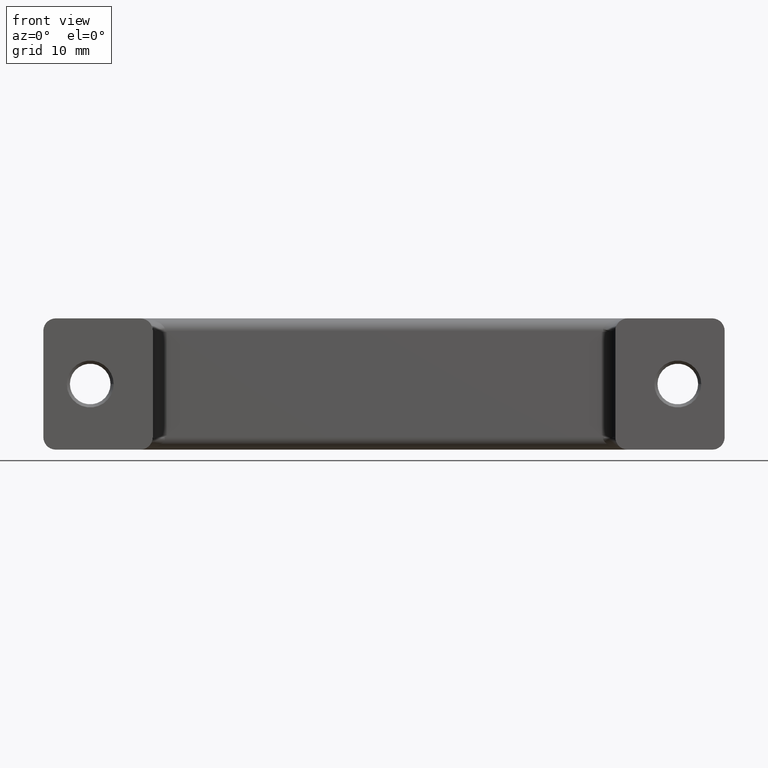
[diagram: clean part render]
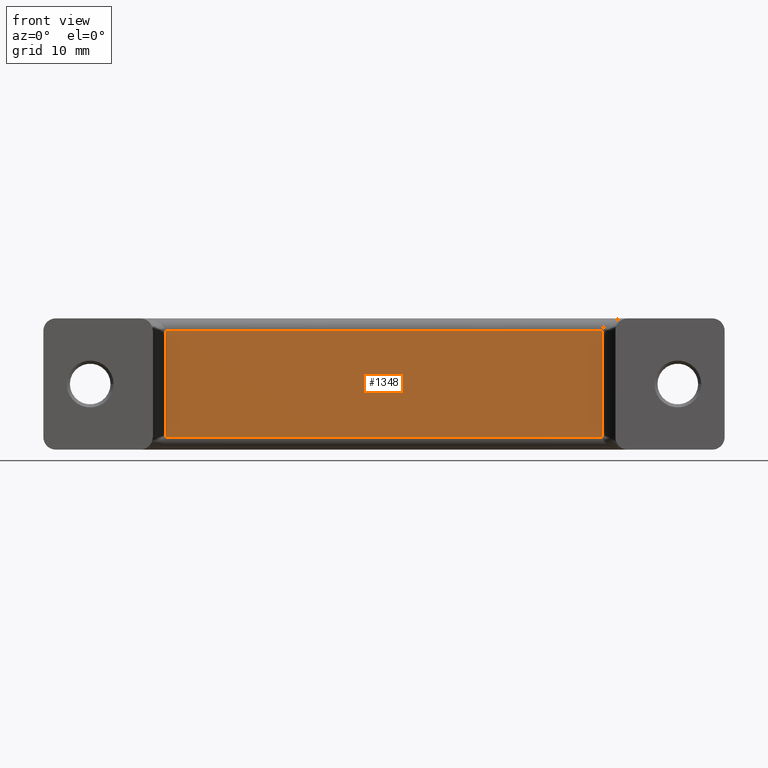
[diagram: same view with one face highlighted and labeled with its STEP entity id]
A machine part, front view. The second image highlights one B-rep face of the part: STEP entity #1348.
In plain terms, the highlighted planar face has unit normal (0, -1, 0).
Its self-contained STEP definition (entity closure, byte-faithful):
#47=PLANE('',#1477);
#117=LINE('',#2423,#206);
#118=LINE('',#2464,#207);
#119=LINE('',#2466,#208);
#120=LINE('',#2467,#209);
#206=VECTOR('',#1727,17.);
#207=VECTOR('',#1734,70.);
#208=VECTOR('',#1735,17.);
#209=VECTOR('',#1736,70.);
#335=FACE_OUTER_BOUND('',#438,.T.);
#438=EDGE_LOOP('',(#1020,#1021,#1022,#1023));
#648=VERTEX_POINT('',#2412);
#651=VERTEX_POINT('',#2419);
#654=VERTEX_POINT('',#2463);
#655=VERTEX_POINT('',#2465);
#785=EDGE_CURVE('',#648,#651,#117,.T.);
#788=EDGE_CURVE('',#654,#648,#118,.T.);
#789=EDGE_CURVE('',#655,#654,#119,.T.);
#790=EDGE_CURVE('',#651,#655,#120,.T.);
#1020=ORIENTED_EDGE('',*,*,#785,.F.);
#1021=ORIENTED_EDGE('',*,*,#788,.F.);
#1022=ORIENTED_EDGE('',*,*,#789,.F.);
#1023=ORIENTED_EDGE('',*,*,#790,.F.);
#1348=ADVANCED_FACE('',(#335),#47,.T.);
#1477=AXIS2_PLACEMENT_3D('',#2462,#1732,#1733);
#1727=DIRECTION('',(0.,0.,-1.));
#1732=DIRECTION('center_axis',(1.20024110770287E-16,-1.,0.));
#1733=DIRECTION('ref_axis',(0.,0.,-1.));
#1734=DIRECTION('',(1.,1.20024110770287E-16,0.));
#1735=DIRECTION('',(0.,0.,1.));
#1736=DIRECTION('',(-1.,-1.20024110770287E-16,0.));
#2412=CARTESIAN_POINT('',(58.4022348990987,5.82495356909815,19.));
#2419=CARTESIAN_POINT('',(58.4022348990987,5.82495356909815,2.));
#2423=CARTESIAN_POINT('',(58.4022348990987,5.82495356909815,0.));
#2462=CARTESIAN_POINT('Origin',(60.4022348990987,5.82495356909815,0.));
#2463=CARTESIAN_POINT('',(-11.5977651009013,5.82495356909814,19.));
#2464=CARTESIAN_POINT('',(41.9022348990987,5.82495356909815,19.));
#2465=CARTESIAN_POINT('',(-11.5977651009013,5.82495356909814,2.));
#2466=CARTESIAN_POINT('',(-11.5977651009013,5.82495356909814,0.));
#2467=CARTESIAN_POINT('',(41.9022348990987,5.82495356909815,2.));